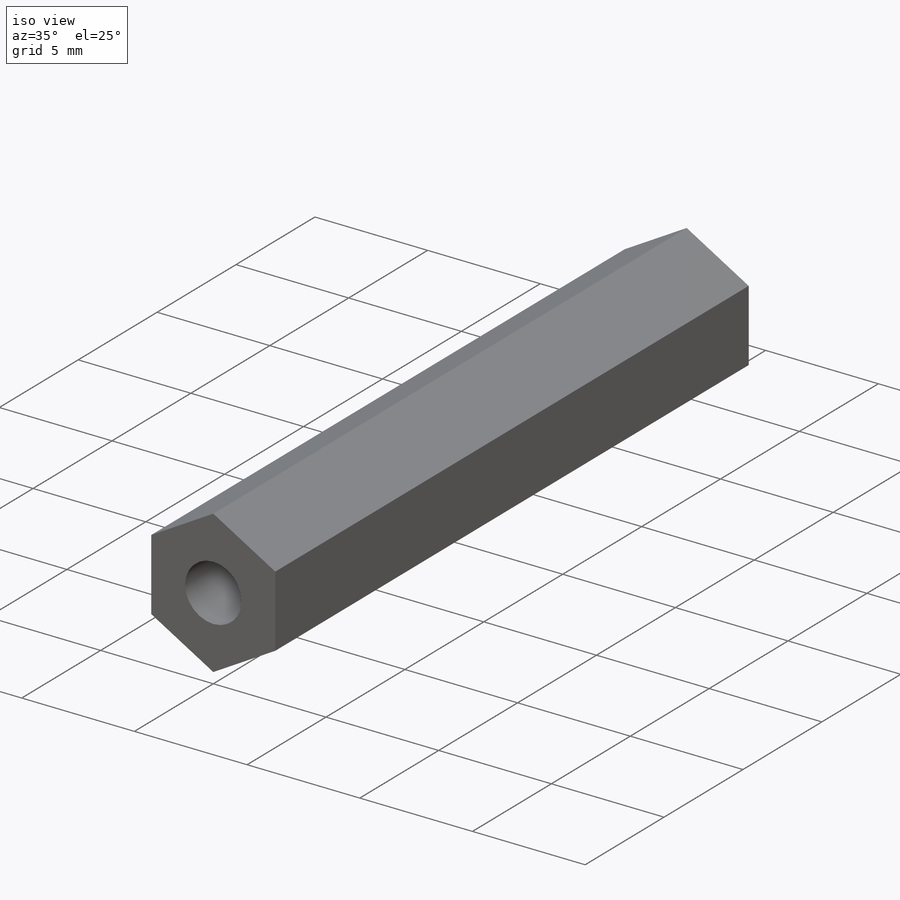
[diagram: iso view]
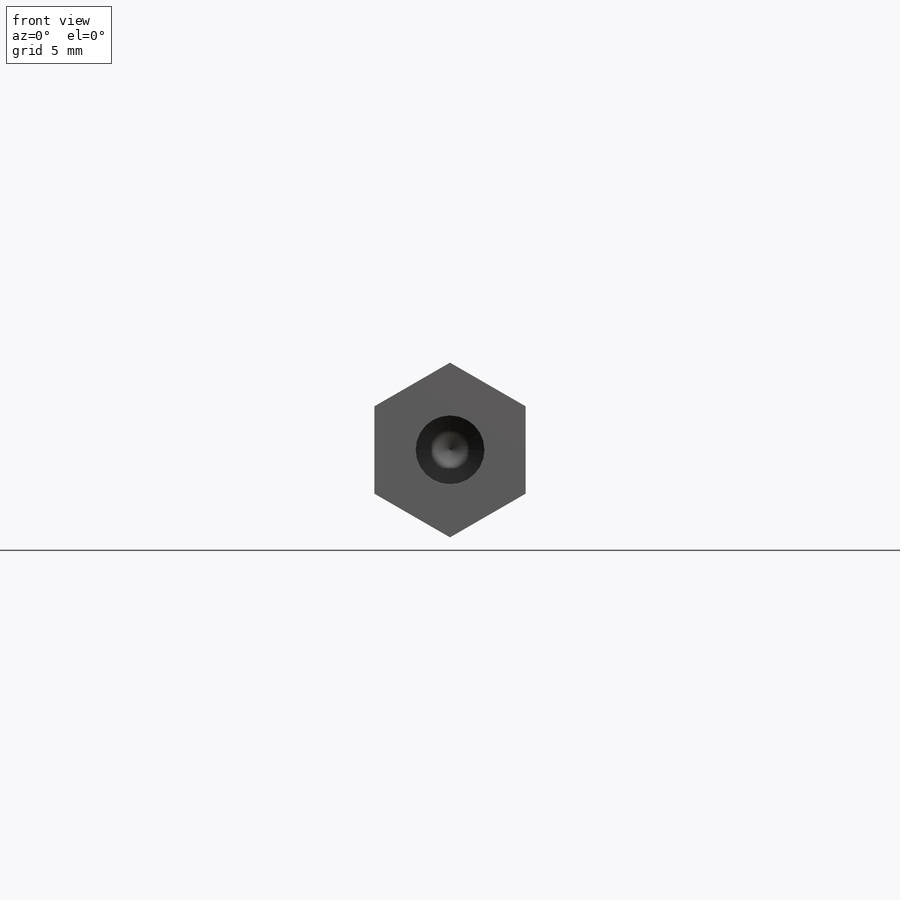
[diagram: front view]
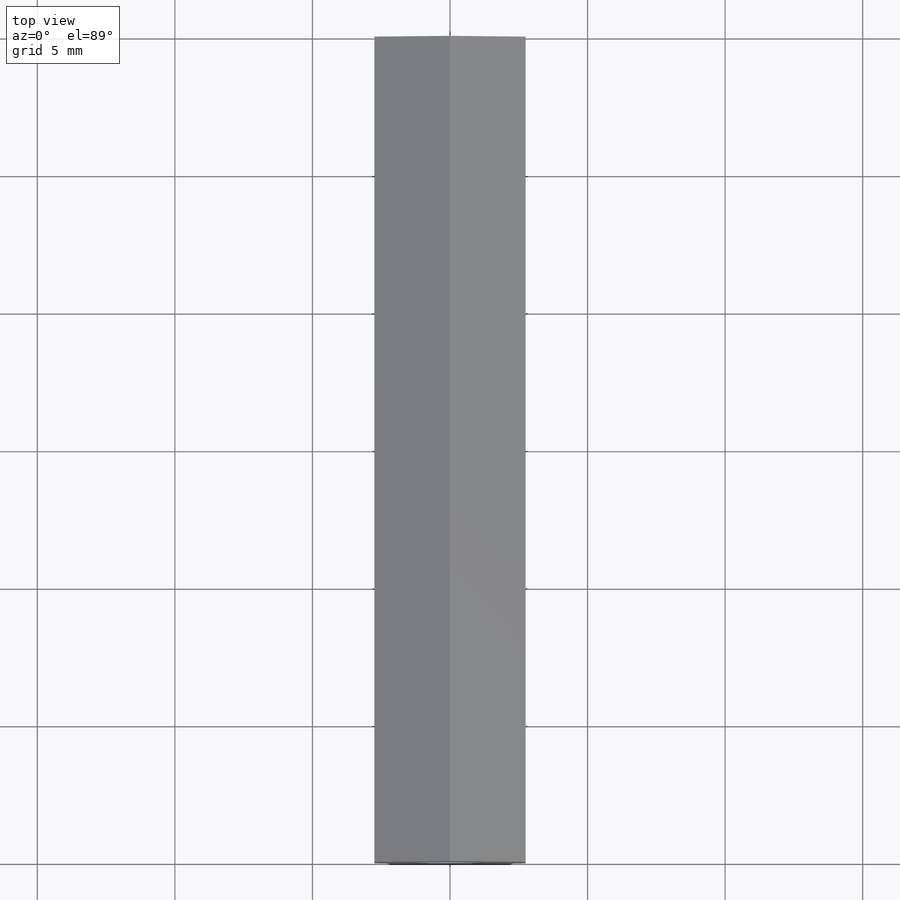
[diagram: top view]
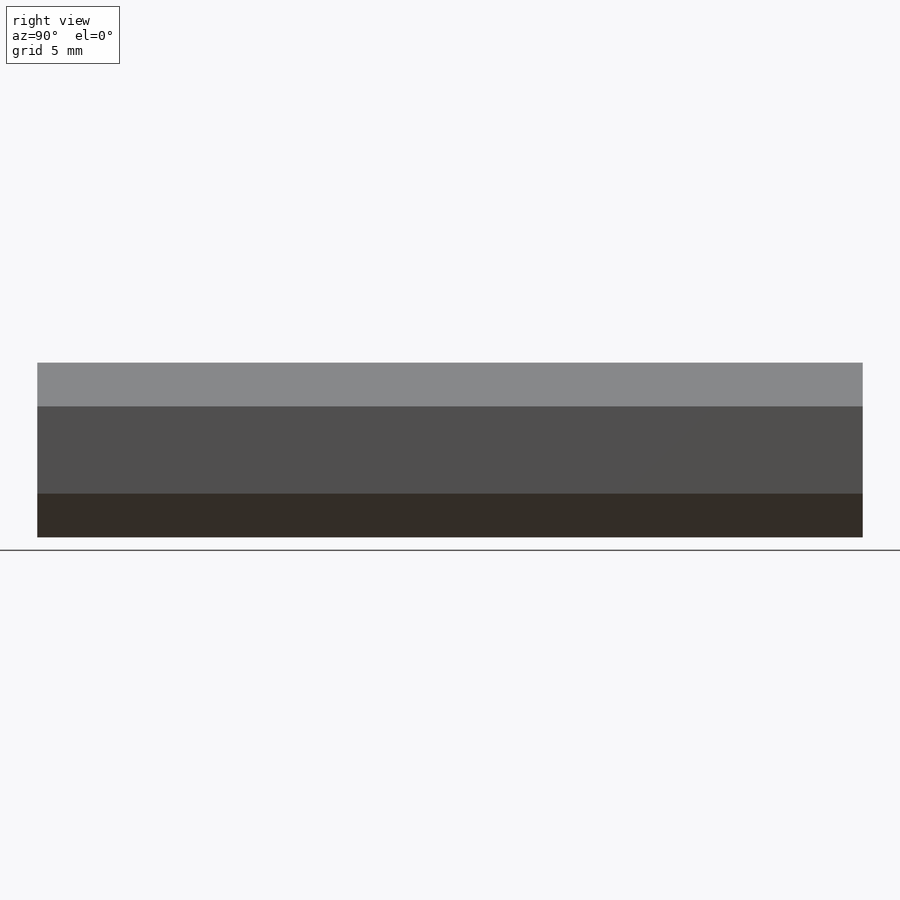
[diagram: right view]
SOLIDWORKS PART (.sldprt)
format: sldprt  version: not decoded by parser v0  size: 179,200 bytes
history: native  units: mm
features: sketch x5, plane x3, hole x2, material x1, extrude x1 (+13 scaffold rows collapsed)
feature tree (25):
  scaffold x13  (default folders/planes/origin — collapsed)
  material  "Matériau <non spécifié>"
  plane  "Plan de face"
  plane  "Plan de dessus"
  plane  "Plan de droite"
  sketch  "Esquisse1"  dims[D1=5.5mm]
  extrude  "Boss.-Extru.1"  Depth=30mm
  hole  "Trou pour taraudage pour trou taraudé M31"  Diameter=2.5mm Depth=7mm
  sketch  "Esquisse3"
  sketch  "Esquisse2"  dims[hole-wizard template sketch: 47 standard entries collapsed; hole parameters kept: c15.Profondeur du perçage=7.0mm c15.D3=~14.816244mm c15.Angle de pointe=118.0deg]
  hole  "Trou pour taraudage pour trou taraudé M32"  Diameter=2.5mm Depth=7mm
  sketch  "Esquisse7"
  sketch  "Esquisse6"  dims[hole-wizard template sketch: 47 standard entries collapsed; hole parameters kept: c15.Profondeur du perçage=7.0mm c15.D3=~14.816244mm c15.Angle de pointe=118.0deg]
decode coverage: 6 of 8 modeling features carry decoded parameters
note: ~ marks probable driven/reference dimensions
note: suppression state not decoded; provenance and decode notes live in map.json
